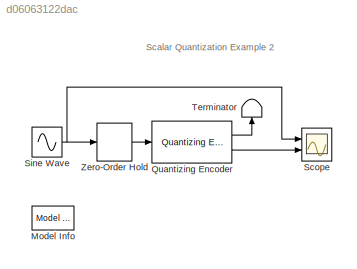
MODEL slx_d06063122dac
KIND model
BLOCK [Reference] Model Info  REF=simulink/Model-Wide
Utilities/Model Info
  BlockCM = none
  DisplayStringWithTags = Info
  Frame = on
  HorizontalTextAlignment = Center
  InitialBlockCM = None
  LeftAlignmentValue = 0.5
  MaskDisplayString = Info
  Ports = []
  SourceBlock = simulink/Model-Wide\nUtilities/Model Info
  SourceBlockDiagram = doc_scalar_quant_2
  SourceType = CMBlock
  TagMaxNumber = 20
BLOCK [Reference] Quantizing Encoder  REF=commsrccod2/Quantizing
Encoder
  Ports = [1, 2]
  SourceBlock = commsrccod2/Quantizing\nEncoder
  SourceType = Quantizing Encoder
  codebook = [-1.1:.2:1.1]
  idxDType = double
  partition = [-1:.2:1]
BLOCK [Scope] Scope
  DataFormat = StructureWithTime
  Floating = off
  NumInputPorts = 2
  Ports = [2]
  SampleTime = 0
  ShowLegends = off
  YMax = 1.2~1.2
  YMin = -1.2~-1.2
BLOCK [Sin] Sine Wave
  Ports = [0, 1]
  SampleTime = 0
BLOCK [Terminator] Terminator
BLOCK [ZeroOrderHold] Zero-Order Hold
  SampleTime = .1
ANNOTATION (root): Scalar Quantization Example 2
LINE Quantizing Encoder:1 -> Terminator:1
LINE Quantizing Encoder:2 -> Scope:2
NET Sine Wave:1 -> Scope:1, Zero-Order Hold:1
LINE Zero-Order Hold:1 -> Quantizing Encoder:1
note: NET lines group one-source signal fan-out (src -> all destinations, sorted); 1:1 wires keep LINE
